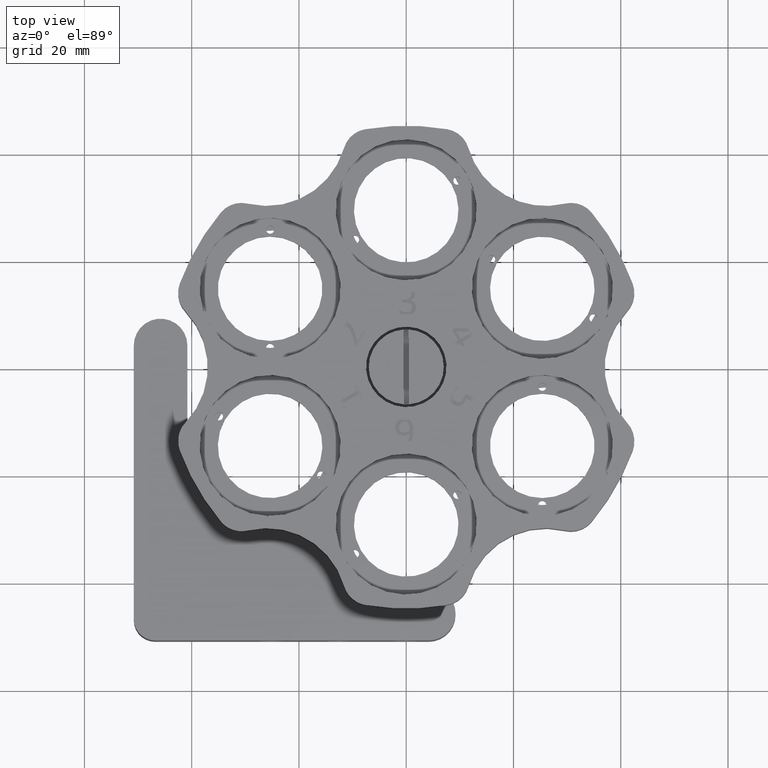
[diagram: clean part render]
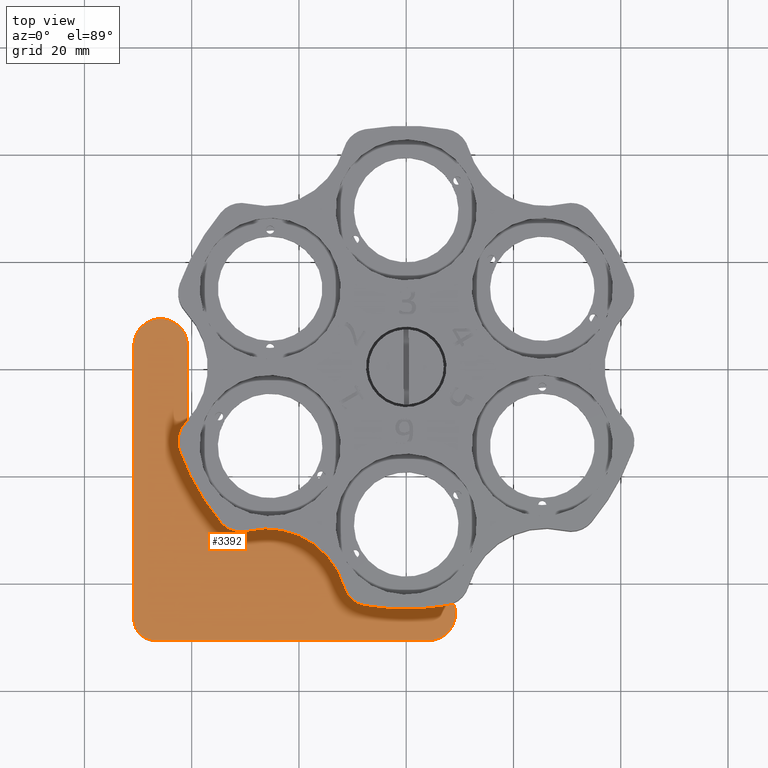
[diagram: same view with one face highlighted and labeled with its STEP entity id]
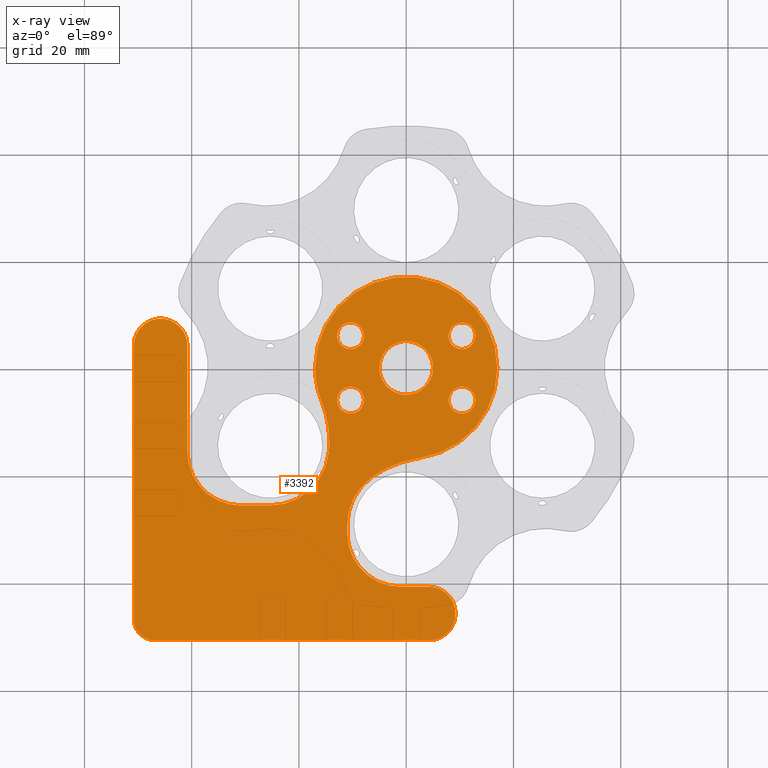
[diagram: x-ray of the same camera — body ghosted, the highlighted face saturated]
A machine part, top view. The second image highlights one B-rep face of the part: STEP entity #3392.
The next image is the same camera in x-ray: the body ghosted, the highlighted face saturated — about 0% of this face is hidden behind the body in this view.
In plain terms, the highlighted planar face has unit normal (-0, 0, 1).
Its self-contained STEP definition (entity closure, byte-faithful):
#36 = CARTESIAN_POINT ( 'NONE',  ( 4.199999999999981500, -45.79999999999999000, 0.0000000000000000000 ) ) ;
#206 = EDGE_CURVE ( 'NONE', #6146, #10418, #10080, .T. ) ;
#226 = ORIENTED_EDGE ( 'NONE', *, *, #7056, .F. ) ;
#466 = VERTEX_POINT ( 'NONE', #3437 ) ;
#568 = CIRCLE ( 'NONE', #1422, 17.00000000000003600 ) ;
#610 = EDGE_CURVE ( 'NONE', #3644, #13509, #10063, .T. ) ;
#618 = CARTESIAN_POINT ( 'NONE',  ( -0.002681564368387998100, -29.29999999999997900, 0.0000000000000000000 ) ) ;
#637 = VERTEX_POINT ( 'NONE', #4771 ) ;
#695 = EDGE_LOOP ( 'NONE', ( #4339, #9100 ) ) ;
#849 = CARTESIAN_POINT ( 'NONE',  ( -50.79999999999999700, -46.79999999999999700, 0.0000000000000000000 ) ) ;
#871 = CIRCLE ( 'NONE', #10166, 19.99999999999996100 ) ;
#916 = VERTEX_POINT ( 'NONE', #3540 ) ;
#1003 = EDGE_CURVE ( 'NONE', #5352, #637, #5162, .T. ) ;
#1061 = DIRECTION ( 'NONE',  ( 1.000000000000000000, 0.0000000000000000000, 0.0000000000000000000 ) ) ;
#1067 = CARTESIAN_POINT ( 'NONE',  ( 1.431146867680865900E-014, 2.135878279796443700E-014, 0.0000000000000000000 ) ) ;
#1082 = EDGE_CURVE ( 'NONE', #11487, #13324, #12332, .T. ) ;
#1125 = EDGE_CURVE ( 'NONE', #916, #10418, #2513, .T. ) ;
#1146 = ORIENTED_EDGE ( 'NONE', *, *, #206, .T. ) ;
#1175 = DIRECTION ( 'NONE',  ( 1.000000000000000000, 0.0000000000000000000, 0.0000000000000000000 ) ) ;
#1297 = EDGE_CURVE ( 'NONE', #2326, #6891, #4594, .T. ) ;
#1305 = AXIS2_PLACEMENT_3D ( 'NONE', #11097, #13375, #2711 ) ;
#1318 = DIRECTION ( 'NONE',  ( 1.000000000000000000, 0.0000000000000000000, 0.0000000000000000000 ) ) ;
#1422 = AXIS2_PLACEMENT_3D ( 'NONE', #1067, #8293, #9503 ) ;
#1444 = FACE_BOUND ( 'NONE', #7709, .T. ) ;
#1446 = ORIENTED_EDGE ( 'NONE', *, *, #1711, .F. ) ;
#1481 = DIRECTION ( 'NONE',  ( 0.0000000000000000000, 1.000000000000000000, -0.0000000000000000000 ) ) ;
#1632 = LINE ( 'NONE', #9636, #9549 ) ;
#1636 = EDGE_CURVE ( 'NONE', #12617, #6146, #568, .T. ) ;
#1711 = EDGE_CURVE ( 'NONE', #466, #2018, #4685, .T. ) ;
#1784 = CARTESIAN_POINT ( 'NONE',  ( 4.199999999999981500, -45.79999999999999000, 0.0000000000000000000 ) ) ;
#1812 = FACE_BOUND ( 'NONE', #695, .T. ) ;
#1815 = DIRECTION ( 'NONE',  ( -0.0000000000000000000, 0.0000000000000000000, 1.000000000000000000 ) ) ;
#1890 = CARTESIAN_POINT ( 'NONE',  ( -11.00000000000002300, -30.79999999999998600, 0.0000000000000000000 ) ) ;
#1960 = EDGE_LOOP ( 'NONE', ( #2614, #7285 ) ) ;
#2018 = VERTEX_POINT ( 'NONE', #10018 ) ;
#2036 = CARTESIAN_POINT ( 'NONE',  ( -10.39230484541325700, -6.000000000000015100, 1.249098480898822200E-015 ) ) ;
#2074 = CARTESIAN_POINT ( 'NONE',  ( -10.39230484541325700, -6.000000000000015100, 1.249098480898822200E-015 ) ) ;
#2075 = ORIENTED_EDGE ( 'NONE', *, *, #10003, .F. ) ;
#2211 = DIRECTION ( 'NONE',  ( -0.0000000000000000000, -0.0000000000000000000, 1.000000000000000000 ) ) ;
#2235 = ORIENTED_EDGE ( 'NONE', *, *, #2287, .T. ) ;
#2269 = CIRCLE ( 'NONE', #9827, 17.00000000000003600 ) ;
#2287 = EDGE_CURVE ( 'NONE', #10725, #5813, #15619, .T. ) ;
#2326 = VERTEX_POINT ( 'NONE', #13390 ) ;
#2365 = CARTESIAN_POINT ( 'NONE',  ( -10.39230484541325700, 6.000000000000015100, 1.249098480898822200E-015 ) ) ;
#2393 = DIRECTION ( 'NONE',  ( -0.0000000000000000000, 0.0000000000000000000, 1.000000000000000000 ) ) ;
#2495 = DIRECTION ( 'NONE',  ( -0.0000000000000000000, 0.0000000000000000000, 1.000000000000000000 ) ) ;
#2513 = CIRCLE ( 'NONE', #12633, 19.99999999999996100 ) ;
#2614 = ORIENTED_EDGE ( 'NONE', *, *, #1297, .F. ) ;
#2623 = CIRCLE ( 'NONE', #8952, 4.999999999999997300 ) ;
#2654 = AXIS2_PLACEMENT_3D ( 'NONE', #14642, #6153, #3665 ) ;
#2675 = DIRECTION ( 'NONE',  ( -0.0000000000000000000, 0.0000000000000000000, 1.000000000000000000 ) ) ;
#2676 = VERTEX_POINT ( 'NONE', #849 ) ;
#2711 = DIRECTION ( 'NONE',  ( 1.000000000000000000, 0.0000000000000000000, 0.0000000000000000000 ) ) ;
#3062 = EDGE_CURVE ( 'NONE', #6891, #2326, #12392, .T. ) ;
#3107 = EDGE_CURVE ( 'NONE', #15433, #2676, #1632, .T. ) ;
#3160 = VERTEX_POINT ( 'NONE', #6069 ) ;
#3262 = ORIENTED_EDGE ( 'NONE', *, *, #4157, .F. ) ;
#3317 = CIRCLE ( 'NONE', #13207, 2.499999999999988500 ) ;
#3392 = ADVANCED_FACE ( 'NONE', ( #1444, #3705, #15416, #1812, #12767, #8612 ), #9155, .T. ) ;
#3437 = CARTESIAN_POINT ( 'NONE',  ( -12.89230484541324500, -6.000000000000015100, 1.249098480898822200E-015 ) ) ;
#3495 = ORIENTED_EDGE ( 'NONE', *, *, #13807, .F. ) ;
#3511 = CARTESIAN_POINT ( 'NONE',  ( 5.219492312476295300, -36.62999999999998800, 0.0000000000000000000 ) ) ;
#3540 = CARTESIAN_POINT ( 'NONE',  ( -14.33791815153540700, -13.78068855385882700, 0.0000000000000000000 ) ) ;
#3596 = CIRCLE ( 'NONE', #2654, 2.499999999999988500 ) ;
#3605 = EDGE_CURVE ( 'NONE', #15585, #5629, #5594, .T. ) ;
#3625 = DIRECTION ( 'NONE',  ( 1.000000000000000000, 0.0000000000000000000, 0.0000000000000000000 ) ) ;
#3644 = VERTEX_POINT ( 'NONE', #4051 ) ;
#3665 = DIRECTION ( 'NONE',  ( 1.000000000000000000, 0.0000000000000000000, 0.0000000000000000000 ) ) ;
#3669 = CARTESIAN_POINT ( 'NONE',  ( -5.000000000000000900, 0.0000000000000000000, 0.0000000000000000000 ) ) ;
#3678 = ORIENTED_EDGE ( 'NONE', *, *, #7364, .T. ) ;
#3705 = FACE_BOUND ( 'NONE', #1960, .T. ) ;
#3765 = VERTEX_POINT ( 'NONE', #13522 ) ;
#3792 = DIRECTION ( 'NONE',  ( 1.088453945710937700E-015, -1.000000000000000000, 0.0000000000000000000 ) ) ;
#3840 = CARTESIAN_POINT ( 'NONE',  ( -25.37999999999998500, -14.64999999999992400, 0.0000000000000000000 ) ) ;
#3843 = VERTEX_POINT ( 'NONE', #11531 ) ;
#3856 = EDGE_CURVE ( 'NONE', #5629, #916, #871, .T. ) ;
#3878 = CARTESIAN_POINT ( 'NONE',  ( -16.91161726340155300, -40.80000000000001100, 0.0000000000000000000 ) ) ;
#3937 = ORIENTED_EDGE ( 'NONE', *, *, #5685, .F. ) ;
#3939 = CARTESIAN_POINT ( 'NONE',  ( -11.00000000000002300, -29.54287285833695600, 0.0000000000000000000 ) ) ;
#4036 = AXIS2_PLACEMENT_3D ( 'NONE', #12089, #12139, #4926 ) ;
#4041 = DIRECTION ( 'NONE',  ( 1.000000000000000000, 0.0000000000000000000, 0.0000000000000000000 ) ) ;
#4048 = LINE ( 'NONE', #5050, #9143 ) ;
#4051 = CARTESIAN_POINT ( 'NONE',  ( 9.199999999999979700, -45.79999999999999000, 0.0000000000000000000 ) ) ;
#4058 = EDGE_CURVE ( 'NONE', #8318, #8429, #3317, .T. ) ;
#4157 = EDGE_CURVE ( 'NONE', #14513, #7793, #14639, .T. ) ;
#4235 = DIRECTION ( 'NONE',  ( -0.0000000000000000000, 0.0000000000000000000, 1.000000000000000000 ) ) ;
#4311 = AXIS2_PLACEMENT_3D ( 'NONE', #3840, #2675, #7578 ) ;
#4336 = ORIENTED_EDGE ( 'NONE', *, *, #3107, .T. ) ;
#4339 = ORIENTED_EDGE ( 'NONE', *, *, #4058, .F. ) ;
#4409 = CARTESIAN_POINT ( 'NONE',  ( -15.77688131286762600, -6.331667713935137200, 0.0000000000000000000 ) ) ;
#4506 = DIRECTION ( 'NONE',  ( 1.000000000000000000, 0.0000000000000000000, 0.0000000000000000000 ) ) ;
#4518 = CARTESIAN_POINT ( 'NONE',  ( 7.892304845413268500, -6.000000000000015100, 1.249098480898822200E-015 ) ) ;
#4594 = CIRCLE ( 'NONE', #1305, 2.499999999999988500 ) ;
#4621 = CARTESIAN_POINT ( 'NONE',  ( -40.80000000000005400, 4.200000000000009100, 0.0000000000000000000 ) ) ;
#4641 = AXIS2_PLACEMENT_3D ( 'NONE', #15008, #1815, #4041 ) ;
#4676 = CARTESIAN_POINT ( 'NONE',  ( 1.431146867680865900E-014, 2.135878279796443700E-014, 0.0000000000000000000 ) ) ;
#4685 = CIRCLE ( 'NONE', #9299, 2.499999999999988500 ) ;
#4771 = CARTESIAN_POINT ( 'NONE',  ( 7.892304845413268500, 6.000000000000015100, 1.249098480898822200E-015 ) ) ;
#4852 = DIRECTION ( 'NONE',  ( -0.0000000000000000000, -0.0000000000000000000, 1.000000000000000000 ) ) ;
#4853 = EDGE_CURVE ( 'NONE', #3160, #3843, #4048, .T. ) ;
#4920 = CARTESIAN_POINT ( 'NONE',  ( -1.000000000000021800, -40.79999999999999000, 0.0000000000000000000 ) ) ;
#4926 = DIRECTION ( 'NONE',  ( 1.000000000000000000, 0.0000000000000000000, 0.0000000000000000000 ) ) ;
#4930 = CIRCLE ( 'NONE', #4641, 4.999999999999997300 ) ;
#4970 = DIRECTION ( 'NONE',  ( -0.0000000000000000000, 0.0000000000000000000, 1.000000000000000000 ) ) ;
#5034 = CARTESIAN_POINT ( 'NONE',  ( 0.0000000000000000000, 0.0000000000000000000, 0.0000000000000000000 ) ) ;
#5050 = CARTESIAN_POINT ( 'NONE',  ( -16.91161726340149600, -50.79999999999998300, 0.0000000000000000000 ) ) ;
#5100 = DIRECTION ( 'NONE',  ( -1.000000000000000000, -1.334402673828312100E-015, 0.0000000000000000000 ) ) ;
#5162 = CIRCLE ( 'NONE', #4036, 2.499999999999988500 ) ;
#5235 = AXIS2_PLACEMENT_3D ( 'NONE', #2036, #8168, #14125 ) ;
#5351 = CARTESIAN_POINT ( 'NONE',  ( -17.00000000000002100, 2.344068235651494100E-014, 0.0000000000000000000 ) ) ;
#5352 = VERTEX_POINT ( 'NONE', #15335 ) ;
#5513 = LINE ( 'NONE', #9696, #14001 ) ;
#5535 = DIRECTION ( 'NONE',  ( -0.0000000000000000000, 0.0000000000000000000, 1.000000000000000000 ) ) ;
#5594 = CIRCLE ( 'NONE', #4311, 11.00000000000001600 ) ;
#5604 = ORIENTED_EDGE ( 'NONE', *, *, #1125, .F. ) ;
#5629 = VERTEX_POINT ( 'NONE', #10478 ) ;
#5685 = EDGE_CURVE ( 'NONE', #2018, #466, #10731, .T. ) ;
#5813 = VERTEX_POINT ( 'NONE', #3669 ) ;
#5960 = CARTESIAN_POINT ( 'NONE',  ( -46.80000000000000400, -46.79999999999999700, 0.0000000000000000000 ) ) ;
#5994 = EDGE_LOOP ( 'NONE', ( #4336, #9314, #15620, #14293, #15424, #10853, #3262, #7945, #2075, #3495, #10979, #15544, #1146, #5604, #12039, #14104, #3678, #12436, #15019, #13244 ) ) ;
#6069 = CARTESIAN_POINT ( 'NONE',  ( -46.80000000000000400, -50.79999999999999000, 0.0000000000000000000 ) ) ;
#6146 = VERTEX_POINT ( 'NONE', #5351 ) ;
#6153 = DIRECTION ( 'NONE',  ( -0.0000000000000000000, -0.0000000000000000000, 1.000000000000000000 ) ) ;
#6270 = DIRECTION ( 'NONE',  ( 1.000000000000000000, 2.721134864277345600E-016, 0.0000000000000000000 ) ) ;
#6432 = LINE ( 'NONE', #3878, #7174 ) ;
#6478 = CARTESIAN_POINT ( 'NONE',  ( -7.892304845413268500, 6.000000000000015100, 1.249098480898822200E-015 ) ) ;
#6548 = CARTESIAN_POINT ( 'NONE',  ( -10.39230484541325700, 6.000000000000015100, 1.249098480898822200E-015 ) ) ;
#6616 = AXIS2_PLACEMENT_3D ( 'NONE', #6548, #11287, #10015 ) ;
#6667 = DIRECTION ( 'NONE',  ( 1.000000000000000000, 0.0000000000000000000, 0.0000000000000000000 ) ) ;
#6818 = CIRCLE ( 'NONE', #6616, 2.499999999999988500 ) ;
#6869 = AXIS2_PLACEMENT_3D ( 'NONE', #14342, #7098, #10683 ) ;
#6891 = VERTEX_POINT ( 'NONE', #4518 ) ;
#7016 = DIRECTION ( 'NONE',  ( -0.0000000000000000000, 0.0000000000000000000, 1.000000000000000000 ) ) ;
#7056 = EDGE_CURVE ( 'NONE', #637, #5352, #3596, .T. ) ;
#7098 = DIRECTION ( 'NONE',  ( 0.0000000000000000000, 0.0000000000000000000, -1.000000000000000000 ) ) ;
#7162 = CARTESIAN_POINT ( 'NONE',  ( 10.39230484541325700, -6.000000000000015100, 1.249098480898822200E-015 ) ) ;
#7174 = VECTOR ( 'NONE', #5100, 1000.000000000000000 ) ;
#7285 = ORIENTED_EDGE ( 'NONE', *, *, #3062, .F. ) ;
#7307 = EDGE_LOOP ( 'NONE', ( #3937, #1446 ) ) ;
#7349 = DIRECTION ( 'NONE',  ( 0.0000000000000000000, -1.000000000000000000, 0.0000000000000000000 ) ) ;
#7364 = EDGE_CURVE ( 'NONE', #15585, #15536, #10380, .T. ) ;
#7427 = CARTESIAN_POINT ( 'NONE',  ( -40.80000000000005400, -15.64999999999992800, 0.0000000000000000000 ) ) ;
#7485 = DIRECTION ( 'NONE',  ( -0.0000000000000000000, 0.0000000000000000000, 1.000000000000000000 ) ) ;
#7578 = DIRECTION ( 'NONE',  ( 1.000000000000000000, 0.0000000000000000000, 0.0000000000000000000 ) ) ;
#7709 = EDGE_LOOP ( 'NONE', ( #10174, #226 ) ) ;
#7767 = DIRECTION ( 'NONE',  ( -1.000000000000000000, 1.280238727658143600E-015, 0.0000000000000000000 ) ) ;
#7769 = EDGE_CURVE ( 'NONE', #14513, #13951, #5513, .T. ) ;
#7793 = VERTEX_POINT ( 'NONE', #4920 ) ;
#7824 = CARTESIAN_POINT ( 'NONE',  ( -34.33791815153536900, -13.78068855385882700, 0.0000000000000000000 ) ) ;
#7875 = DIRECTION ( 'NONE',  ( 1.000000000000000000, 0.0000000000000000000, 0.0000000000000000000 ) ) ;
#7899 = EDGE_CURVE ( 'NONE', #8429, #8318, #6818, .T. ) ;
#7945 = ORIENTED_EDGE ( 'NONE', *, *, #7769, .T. ) ;
#8168 = DIRECTION ( 'NONE',  ( -0.0000000000000000000, -0.0000000000000000000, 1.000000000000000000 ) ) ;
#8198 = EDGE_CURVE ( 'NONE', #9364, #12617, #2269, .T. ) ;
#8275 = CARTESIAN_POINT ( 'NONE',  ( -50.80000000000005400, 4.200000000000009100, 0.0000000000000000000 ) ) ;
#8293 = DIRECTION ( 'NONE',  ( -0.0000000000000000000, 0.0000000000000000000, 1.000000000000000000 ) ) ;
#8318 = VERTEX_POINT ( 'NONE', #6478 ) ;
#8326 = CARTESIAN_POINT ( 'NONE',  ( -30.80000000000005400, -15.64999999999992800, 0.0000000000000000000 ) ) ;
#8350 = EDGE_LOOP ( 'NONE', ( #9258, #2235 ) ) ;
#8429 = VERTEX_POINT ( 'NONE', #10360 ) ;
#8448 = AXIS2_PLACEMENT_3D ( 'NONE', #7162, #4852, #1318 ) ;
#8452 = DIRECTION ( 'NONE',  ( 1.000000000000000000, 0.0000000000000000000, 0.0000000000000000000 ) ) ;
#8558 = CARTESIAN_POINT ( 'NONE',  ( 1.431146867680865900E-014, 2.135878279796443700E-014, 0.0000000000000000000 ) ) ;
#8560 = DIRECTION ( 'NONE',  ( 0.0000000000000000000, 0.0000000000000000000, -1.000000000000000000 ) ) ;
#8612 = FACE_OUTER_BOUND ( 'NONE', #5994, .T. ) ;
#8747 = AXIS2_PLACEMENT_3D ( 'NONE', #5034, #8560, #13469 ) ;
#8952 = AXIS2_PLACEMENT_3D ( 'NONE', #1784, #11286, #12556 ) ;
#8958 = CARTESIAN_POINT ( 'NONE',  ( -16.91161726340148500, -91.60983450373431900, 0.0000000000000000000 ) ) ;
#9043 = AXIS2_PLACEMENT_3D ( 'NONE', #8326, #15662, #11957 ) ;
#9100 = ORIENTED_EDGE ( 'NONE', *, *, #7899, .F. ) ;
#9104 = CARTESIAN_POINT ( 'NONE',  ( 17.00000000000005000, 2.135878279796443700E-014, 0.0000000000000000000 ) ) ;
#9143 = VECTOR ( 'NONE', #6270, 1000.000000000000000 ) ;
#9155 = PLANE ( 'NONE',  #12793 ) ;
#9258 = ORIENTED_EDGE ( 'NONE', *, *, #12983, .T. ) ;
#9299 = AXIS2_PLACEMENT_3D ( 'NONE', #2074, #9307, #4506 ) ;
#9307 = DIRECTION ( 'NONE',  ( -0.0000000000000000000, -0.0000000000000000000, 1.000000000000000000 ) ) ;
#9314 = ORIENTED_EDGE ( 'NONE', *, *, #11081, .T. ) ;
#9364 = VERTEX_POINT ( 'NONE', #13404 ) ;
#9503 = DIRECTION ( 'NONE',  ( 1.000000000000000000, 0.0000000000000000000, 0.0000000000000000000 ) ) ;
#9527 = DIRECTION ( 'NONE',  ( -0.0000000000000000000, 0.0000000000000000000, 1.000000000000000000 ) ) ;
#9549 = VECTOR ( 'NONE', #3792, 1000.000000000000000 ) ;
#9636 = CARTESIAN_POINT ( 'NONE',  ( -50.79999999999994700, -91.60983450373436200, 0.0000000000000000000 ) ) ;
#9694 = CARTESIAN_POINT ( 'NONE',  ( -1.000000000000024200, -30.79999999999998600, 0.0000000000000000000 ) ) ;
#9696 = CARTESIAN_POINT ( 'NONE',  ( -11.00000000000002300, -91.60983450373431900, 0.0000000000000000000 ) ) ;
#9760 = DIRECTION ( 'NONE',  ( 1.000000000000000000, 0.0000000000000000000, 0.0000000000000000000 ) ) ;
#9827 = AXIS2_PLACEMENT_3D ( 'NONE', #4676, #2393, #3625 ) ;
#10003 = EDGE_CURVE ( 'NONE', #3765, #13951, #10720, .T. ) ;
#10015 = DIRECTION ( 'NONE',  ( 1.000000000000000000, 0.0000000000000000000, 0.0000000000000000000 ) ) ;
#10018 = CARTESIAN_POINT ( 'NONE',  ( -7.892304845413268500, -6.000000000000015100, 1.249098480898822200E-015 ) ) ;
#10063 = CIRCLE ( 'NONE', #14239, 4.999999999999997300 ) ;
#10078 = CARTESIAN_POINT ( 'NONE',  ( 5.000000000000000900, 6.123233995736767300E-016, 0.0000000000000000000 ) ) ;
#10080 = CIRCLE ( 'NONE', #13098, 17.00000000000003600 ) ;
#10121 = CARTESIAN_POINT ( 'NONE',  ( -16.91161726340140300, -25.64999999999994900, 0.0000000000000000000 ) ) ;
#10146 = DIRECTION ( 'NONE',  ( 1.000000000000000000, 0.0000000000000000000, 0.0000000000000000000 ) ) ;
#10166 = AXIS2_PLACEMENT_3D ( 'NONE', #7824, #15209, #7875 ) ;
#10174 = ORIENTED_EDGE ( 'NONE', *, *, #1003, .F. ) ;
#10176 = CIRCLE ( 'NONE', #8747, 5.000000000000000900 ) ;
#10360 = CARTESIAN_POINT ( 'NONE',  ( -12.89230484541324500, 6.000000000000015100, 1.249098480898822200E-015 ) ) ;
#10380 = LINE ( 'NONE', #10121, #10568 ) ;
#10418 = VERTEX_POINT ( 'NONE', #4409 ) ;
#10478 = CARTESIAN_POINT ( 'NONE',  ( -14.43143337034554600, -15.71249176750572500, 0.0000000000000000000 ) ) ;
#10568 = VECTOR ( 'NONE', #7767, 1000.000000000000000 ) ;
#10683 = DIRECTION ( 'NONE',  ( -1.000000000000000000, 0.0000000000000000000, 0.0000000000000000000 ) ) ;
#10720 = CIRCLE ( 'NONE', #12890, 11.00000000000001100 ) ;
#10725 = VERTEX_POINT ( 'NONE', #10078 ) ;
#10731 = CIRCLE ( 'NONE', #5235, 2.499999999999988500 ) ;
#10853 = ORIENTED_EDGE ( 'NONE', *, *, #12486, .T. ) ;
#10941 = DIRECTION ( 'NONE',  ( 1.000000000000000000, 0.0000000000000000000, 0.0000000000000000000 ) ) ;
#10979 = ORIENTED_EDGE ( 'NONE', *, *, #8198, .T. ) ;
#11015 = DIRECTION ( 'NONE',  ( 1.000000000000000000, 0.0000000000000000000, 0.0000000000000000000 ) ) ;
#11081 = EDGE_CURVE ( 'NONE', #2676, #3160, #12312, .T. ) ;
#11097 = CARTESIAN_POINT ( 'NONE',  ( 10.39230484541325700, -6.000000000000015100, 1.249098480898822200E-015 ) ) ;
#11286 = DIRECTION ( 'NONE',  ( -0.0000000000000000000, 0.0000000000000000000, 1.000000000000000000 ) ) ;
#11287 = DIRECTION ( 'NONE',  ( -0.0000000000000000000, -0.0000000000000000000, 1.000000000000000000 ) ) ;
#11398 = VECTOR ( 'NONE', #7349, 1000.000000000000000 ) ;
#11425 = AXIS2_PLACEMENT_3D ( 'NONE', #5960, #7016, #1061 ) ;
#11487 = VERTEX_POINT ( 'NONE', #4621 ) ;
#11531 = CARTESIAN_POINT ( 'NONE',  ( 4.199999999999978000, -50.79999999999997600, 0.0000000000000000000 ) ) ;
#11554 = CARTESIAN_POINT ( 'NONE',  ( -30.80000000000005800, -25.64999999999993500, 0.0000000000000000000 ) ) ;
#11824 = EDGE_CURVE ( 'NONE', #11487, #15433, #4930, .T. ) ;
#11892 = DIRECTION ( 'NONE',  ( -0.0000000000000000000, 0.0000000000000000000, 1.000000000000000000 ) ) ;
#11957 = DIRECTION ( 'NONE',  ( 1.000000000000000000, 0.0000000000000000000, 0.0000000000000000000 ) ) ;
#12039 = ORIENTED_EDGE ( 'NONE', *, *, #3856, .F. ) ;
#12089 = CARTESIAN_POINT ( 'NONE',  ( 10.39230484541325700, 6.000000000000015100, 1.249098480898822200E-015 ) ) ;
#12139 = DIRECTION ( 'NONE',  ( -0.0000000000000000000, -0.0000000000000000000, 1.000000000000000000 ) ) ;
#12265 = CARTESIAN_POINT ( 'NONE',  ( -40.80000000000005400, -91.60983450373431900, 0.0000000000000000000 ) ) ;
#12312 = CIRCLE ( 'NONE', #11425, 3.999999999999996400 ) ;
#12332 = LINE ( 'NONE', #12265, #11398 ) ;
#12392 = CIRCLE ( 'NONE', #8448, 2.499999999999988500 ) ;
#12436 = ORIENTED_EDGE ( 'NONE', *, *, #13729, .F. ) ;
#12486 = EDGE_CURVE ( 'NONE', #13509, #7793, #6432, .T. ) ;
#12556 = DIRECTION ( 'NONE',  ( 1.000000000000000000, 0.0000000000000000000, 0.0000000000000000000 ) ) ;
#12617 = VERTEX_POINT ( 'NONE', #9104 ) ;
#12633 = AXIS2_PLACEMENT_3D ( 'NONE', #14539, #2495, #10941 ) ;
#12767 = FACE_BOUND ( 'NONE', #8350, .T. ) ;
#12793 = AXIS2_PLACEMENT_3D ( 'NONE', #8958, #5535, #10146 ) ;
#12890 = AXIS2_PLACEMENT_3D ( 'NONE', #618, #4235, #6667 ) ;
#12983 = EDGE_CURVE ( 'NONE', #5813, #10725, #10176, .T. ) ;
#13098 = AXIS2_PLACEMENT_3D ( 'NONE', #8558, #7485, #9760 ) ;
#13207 = AXIS2_PLACEMENT_3D ( 'NONE', #2365, #2211, #1175 ) ;
#13228 = DIRECTION ( 'NONE',  ( 1.000000000000000000, 0.0000000000000000000, 0.0000000000000000000 ) ) ;
#13244 = ORIENTED_EDGE ( 'NONE', *, *, #11824, .T. ) ;
#13324 = VERTEX_POINT ( 'NONE', #7427 ) ;
#13375 = DIRECTION ( 'NONE',  ( -0.0000000000000000000, -0.0000000000000000000, 1.000000000000000000 ) ) ;
#13390 = CARTESIAN_POINT ( 'NONE',  ( 12.89230484541324500, -6.000000000000015100, 1.249098480898822200E-015 ) ) ;
#13404 = CARTESIAN_POINT ( 'NONE',  ( 2.398145116543167100, -16.83000000000002000, 0.0000000000000000000 ) ) ;
#13469 = DIRECTION ( 'NONE',  ( -1.000000000000000000, 0.0000000000000000000, 0.0000000000000000000 ) ) ;
#13509 = VERTEX_POINT ( 'NONE', #15237 ) ;
#13522 = CARTESIAN_POINT ( 'NONE',  ( -6.385338524956366300, -20.34111111111102200, 0.0000000000000000000 ) ) ;
#13729 = EDGE_CURVE ( 'NONE', #13324, #15536, #14526, .T. ) ;
#13807 = EDGE_CURVE ( 'NONE', #9364, #3765, #14725, .T. ) ;
#13899 = AXIS2_PLACEMENT_3D ( 'NONE', #3511, #9527, #13228 ) ;
#13951 = VERTEX_POINT ( 'NONE', #3939 ) ;
#13977 = CARTESIAN_POINT ( 'NONE',  ( -25.37999999999998500, -25.64999999999994200, 0.0000000000000000000 ) ) ;
#14001 = VECTOR ( 'NONE', #1481, 1000.000000000000000 ) ;
#14104 = ORIENTED_EDGE ( 'NONE', *, *, #3605, .F. ) ;
#14125 = DIRECTION ( 'NONE',  ( 1.000000000000000000, 0.0000000000000000000, 0.0000000000000000000 ) ) ;
#14239 = AXIS2_PLACEMENT_3D ( 'NONE', #36, #11892, #8452 ) ;
#14293 = ORIENTED_EDGE ( 'NONE', *, *, #14328, .T. ) ;
#14328 = EDGE_CURVE ( 'NONE', #3843, #3644, #2623, .T. ) ;
#14342 = CARTESIAN_POINT ( 'NONE',  ( 0.0000000000000000000, 0.0000000000000000000, 0.0000000000000000000 ) ) ;
#14513 = VERTEX_POINT ( 'NONE', #1890 ) ;
#14526 = CIRCLE ( 'NONE', #9043, 9.999999999999998200 ) ;
#14539 = CARTESIAN_POINT ( 'NONE',  ( -34.33791815153536900, -13.78068855385882700, 0.0000000000000000000 ) ) ;
#14639 = CIRCLE ( 'NONE', #14822, 10.00000000000000200 ) ;
#14642 = CARTESIAN_POINT ( 'NONE',  ( 10.39230484541325700, 6.000000000000015100, 1.249098480898822200E-015 ) ) ;
#14725 = CIRCLE ( 'NONE', #13899, 19.99999999999996100 ) ;
#14822 = AXIS2_PLACEMENT_3D ( 'NONE', #9694, #4970, #11015 ) ;
#15008 = CARTESIAN_POINT ( 'NONE',  ( -45.80000000000005400, 4.200000000000017100, 0.0000000000000000000 ) ) ;
#15019 = ORIENTED_EDGE ( 'NONE', *, *, #1082, .F. ) ;
#15209 = DIRECTION ( 'NONE',  ( -0.0000000000000000000, 0.0000000000000000000, 1.000000000000000000 ) ) ;
#15237 = CARTESIAN_POINT ( 'NONE',  ( 4.199999999999978000, -40.79999999999998300, 0.0000000000000000000 ) ) ;
#15335 = CARTESIAN_POINT ( 'NONE',  ( 12.89230484541324500, 6.000000000000015100, 1.249098480898822200E-015 ) ) ;
#15416 = FACE_BOUND ( 'NONE', #7307, .T. ) ;
#15424 = ORIENTED_EDGE ( 'NONE', *, *, #610, .T. ) ;
#15433 = VERTEX_POINT ( 'NONE', #8275 ) ;
#15536 = VERTEX_POINT ( 'NONE', #11554 ) ;
#15544 = ORIENTED_EDGE ( 'NONE', *, *, #1636, .T. ) ;
#15585 = VERTEX_POINT ( 'NONE', #13977 ) ;
#15619 = CIRCLE ( 'NONE', #6869, 5.000000000000000900 ) ;
#15620 = ORIENTED_EDGE ( 'NONE', *, *, #4853, .T. ) ;
#15662 = DIRECTION ( 'NONE',  ( -0.0000000000000000000, 0.0000000000000000000, 1.000000000000000000 ) ) ;